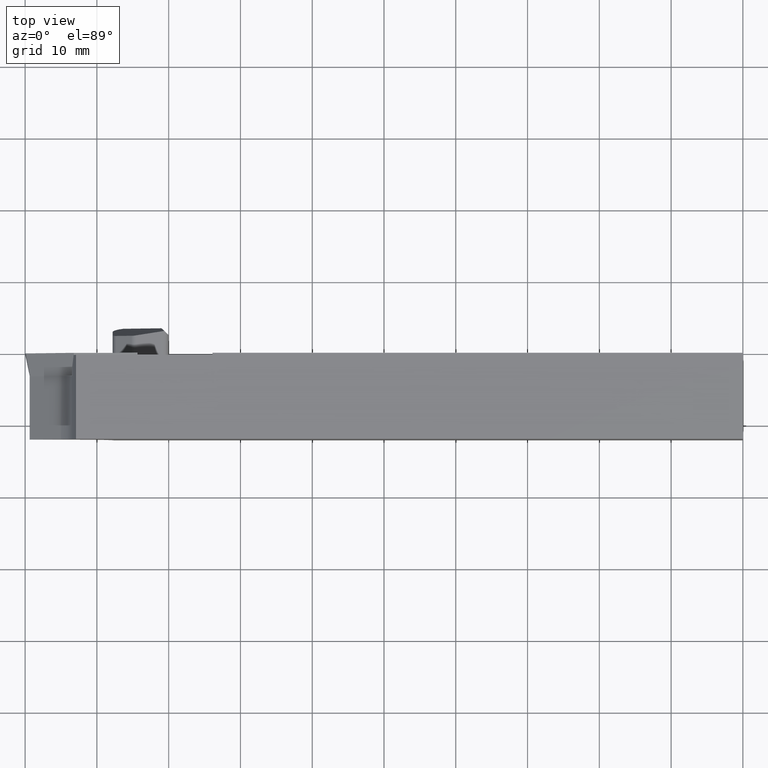
[diagram: clean part render]
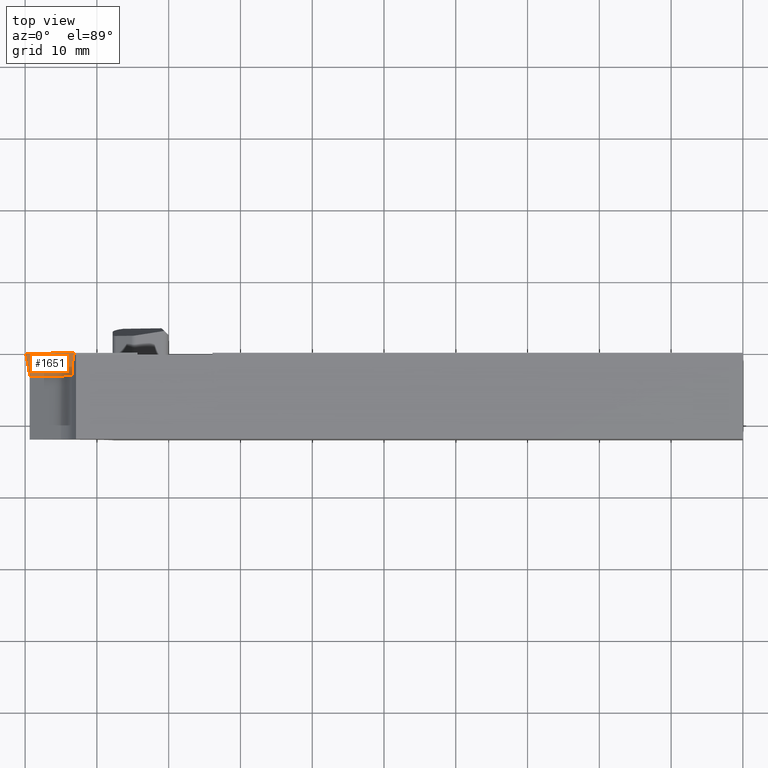
[diagram: same view with one face highlighted and labeled with its STEP entity id]
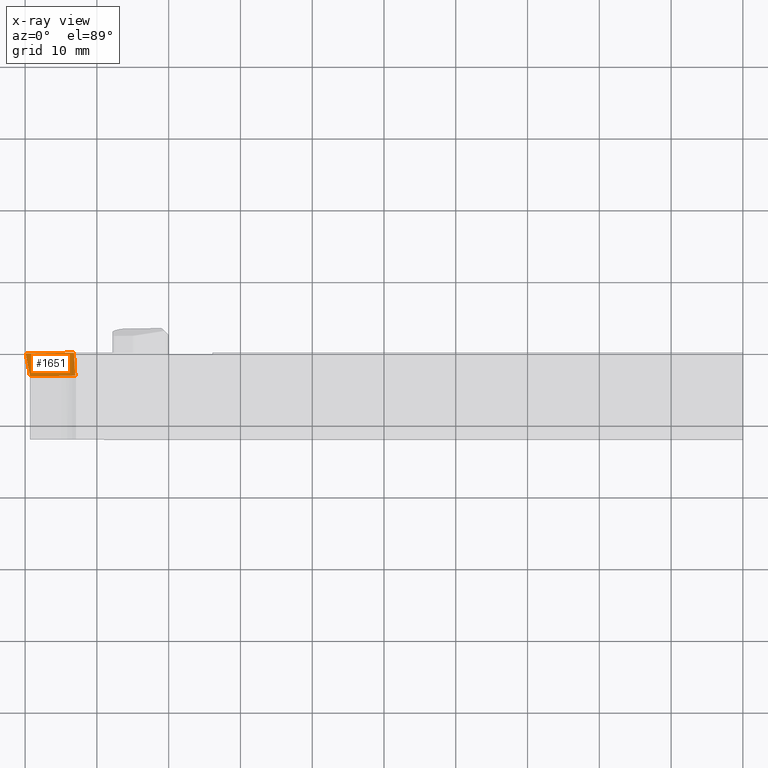
[diagram: x-ray of the same camera — body ghosted, the highlighted face saturated]
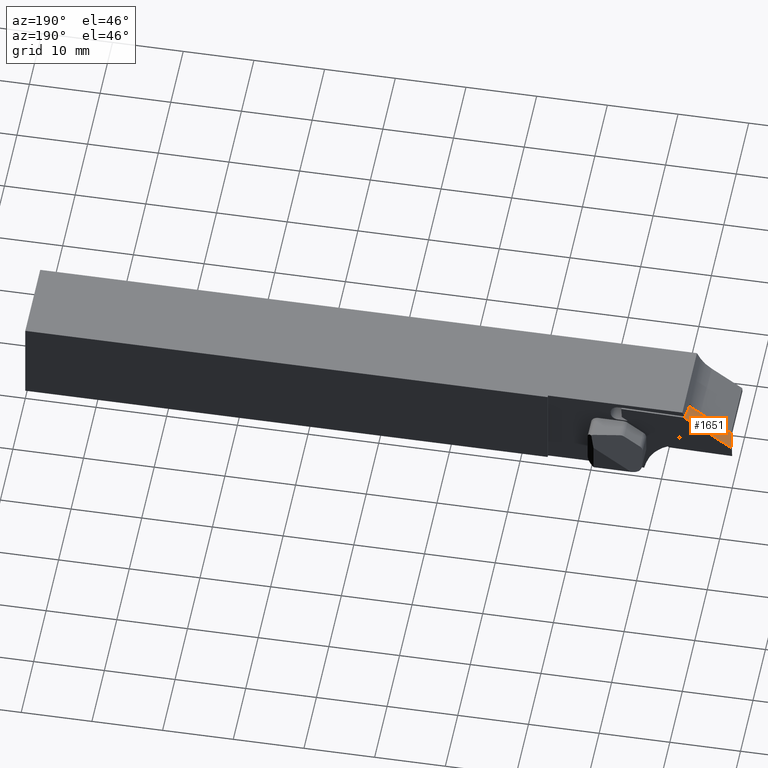
[diagram: same view with one face highlighted and labeled with its STEP entity id]
A machine part, top view. The second image highlights one B-rep face of the part: STEP entity #1651.
The next image is the same camera in x-ray: the body ghosted, the highlighted face saturated — about 0% of this face is hidden behind the body in this view.
A second angle (auxiliary view) of the same face is appended — the face is thin or edge-on in the first view.
In plain terms, the highlighted planar face has unit normal (-0.577, -0.1908, 0.7942).
Its self-contained STEP definition (entity closure, byte-faithful):
#15 = CARTESIAN_POINT ( 'NONE',  ( -99.91618702104935300, 6.049738681378094400E-014, -17.53384412080812600 ) ) ;
#20 = EDGE_CURVE ( 'NONE', #2046, #2407, #279, .T. ) ;
#122 = CARTESIAN_POINT ( 'NONE',  ( -93.21294717546554400, 3.854445627223355500E-014, -12.66365529757144200 ) ) ;
#162 = ORIENTED_EDGE ( 'NONE', *, *, #1996, .T. ) ;
#204 = ORIENTED_EDGE ( 'NONE', *, *, #20, .F. ) ;
#220 = VECTOR ( 'NONE', #1103, 1000.000000000000100 ) ;
#225 = DIRECTION ( 'NONE',  ( -0.8090169943749391200, 2.654979147106365700E-015, -0.5877852522924846800 ) ) ;
#252 = EDGE_CURVE ( 'NONE', #1851, #1660, #715, .T. ) ;
#275 = CARTESIAN_POINT ( 'NONE',  ( -99.91618702104935300, 6.049738681378094400E-014, -17.53384412080812600 ) ) ;
#276 = CARTESIAN_POINT ( 'NONE',  ( -99.91618702104935300, 6.049738681378094400E-014, -17.53384412080812600 ) ) ;
#279 = LINE ( 'NONE', #769, #2248 ) ;
#356 = EDGE_CURVE ( 'NONE', #1654, #1851, #2430, .T. ) ;
#370 = VERTEX_POINT ( 'NONE', #2303 ) ;
#392 = CARTESIAN_POINT ( 'NONE',  ( -93.21294717546554400, 3.854445627223355500E-014, -12.66365529757144200 ) ) ;
#423 = DIRECTION ( 'NONE',  ( -0.8090169943749391200, 2.654979147106365300E-015, -0.5877852522924846800 ) ) ;
#443 = LINE ( 'NONE', #1816, #1447 ) ;
#446 = PLANE ( 'NONE',  #1470 ) ;
#451 = DIRECTION ( 'NONE',  ( -0.8090169943749390100, 2.654979147106365300E-015, -0.5877852522924845700 ) ) ;
#478 = DIRECTION ( 'NONE',  ( -0.8090169943749391200, 2.654979147106365300E-015, -0.5877852522924846800 ) ) ;
#594 = DIRECTION ( 'NONE',  ( -0.1850196563011115800, 0.9775868360970830800, 0.1004574769338412700 ) ) ;
#644 = CARTESIAN_POINT ( 'NONE',  ( -93.00729356791328000, -3.179999999999978400, -13.27828914199650400 ) ) ;
#715 = LINE ( 'NONE', #1440, #220 ) ;
#769 = CARTESIAN_POINT ( 'NONE',  ( -99.91618702104935300, 6.049738681378094400E-014, -17.53384412080812600 ) ) ;
#888 = VECTOR ( 'NONE', #1325, 1000.000000000000100 ) ;
#991 = ORIENTED_EDGE ( 'NONE', *, *, #252, .T. ) ;
#1063 = VECTOR ( 'NONE', #225, 999.9999999999998900 ) ;
#1085 = VECTOR ( 'NONE', #423, 999.9999999999998900 ) ;
#1103 = DIRECTION ( 'NONE',  ( -0.06336818302008619100, 0.9798555172570103700, 0.1893875357084765500 ) ) ;
#1183 = CARTESIAN_POINT ( 'NONE',  ( -94.85603721686005900, -3.179999999999973100, -14.62148002633621700 ) ) ;
#1296 = EDGE_CURVE ( 'NONE', #1660, #370, #2356, .T. ) ;
#1325 = DIRECTION ( 'NONE',  ( -0.06336818302008619100, 0.9798555172570103700, 0.1893875357084765500 ) ) ;
#1366 = CARTESIAN_POINT ( 'NONE',  ( -99.31433510844989600, -3.179999999999958400, -17.86062304709265900 ) ) ;
#1440 = CARTESIAN_POINT ( 'NONE',  ( -93.21294717546554400, 3.854445627223355500E-014, -12.66365529757144200 ) ) ;
#1447 = VECTOR ( 'NONE', #478, 999.9999999999998900 ) ;
#1457 = EDGE_CURVE ( 'NONE', #1654, #2061, #2110, .T. ) ;
#1470 = AXIS2_PLACEMENT_3D ( 'NONE', #275, #1596, #451 ) ;
#1596 = DIRECTION ( 'NONE',  ( -0.5769859816799465200, -0.1908089953765456400, 0.7941530735495656600 ) ) ;
#1651 = ADVANCED_FACE ( 'NONE', ( #2392 ), #446, .T. ) ;
#1653 = EDGE_LOOP ( 'NONE', ( #162, #204, #1862, #1976, #1954, #991, #2013 ) ) ;
#1654 = VERTEX_POINT ( 'NONE', #644 ) ;
#1660 = VERTEX_POINT ( 'NONE', #2182 ) ;
#1691 = EDGE_CURVE ( 'NONE', #2061, #2046, #443, .T. ) ;
#1816 = CARTESIAN_POINT ( 'NONE',  ( -99.55285968567926600, -3.179999999999957500, -18.03392129642460500 ) ) ;
#1851 = VERTEX_POINT ( 'NONE', #1855 ) ;
#1855 = CARTESIAN_POINT ( 'NONE',  ( -93.07721579448100600, -2.098800000000000200, -13.06931363489229100 ) ) ;
#1862 = ORIENTED_EDGE ( 'NONE', *, *, #1691, .F. ) ;
#1947 = CARTESIAN_POINT ( 'NONE',  ( -99.55285968567926600, -3.179999999999957500, -18.03392129642460500 ) ) ;
#1954 = ORIENTED_EDGE ( 'NONE', *, *, #356, .T. ) ;
#1976 = ORIENTED_EDGE ( 'NONE', *, *, #1457, .F. ) ;
#1978 = VECTOR ( 'NONE', #2292, 1000.000000000000100 ) ;
#1996 = EDGE_CURVE ( 'NONE', #370, #2407, #2144, .T. ) ;
#2013 = ORIENTED_EDGE ( 'NONE', *, *, #1296, .T. ) ;
#2046 = VERTEX_POINT ( 'NONE', #1366 ) ;
#2061 = VERTEX_POINT ( 'NONE', #1183 ) ;
#2110 = LINE ( 'NONE', #1947, #1085 ) ;
#2144 = LINE ( 'NONE', #15, #1063 ) ;
#2182 = CARTESIAN_POINT ( 'NONE',  ( -93.19354589173420300, -0.2999999999999999900, -12.72163962251743500 ) ) ;
#2248 = VECTOR ( 'NONE', #594, 1000.000000000000100 ) ;
#2292 = DIRECTION ( 'NONE',  ( -0.06336818302008619100, 0.9798555172570103700, 0.1893875357084765500 ) ) ;
#2303 = CARTESIAN_POINT ( 'NONE',  ( -93.21294717546554400, 3.849913197881688700E-014, -12.66365529757144200 ) ) ;
#2356 = LINE ( 'NONE', #392, #888 ) ;
#2392 = FACE_OUTER_BOUND ( 'NONE', #1653, .T. ) ;
#2407 = VERTEX_POINT ( 'NONE', #276 ) ;
#2430 = LINE ( 'NONE', #122, #1978 ) ;